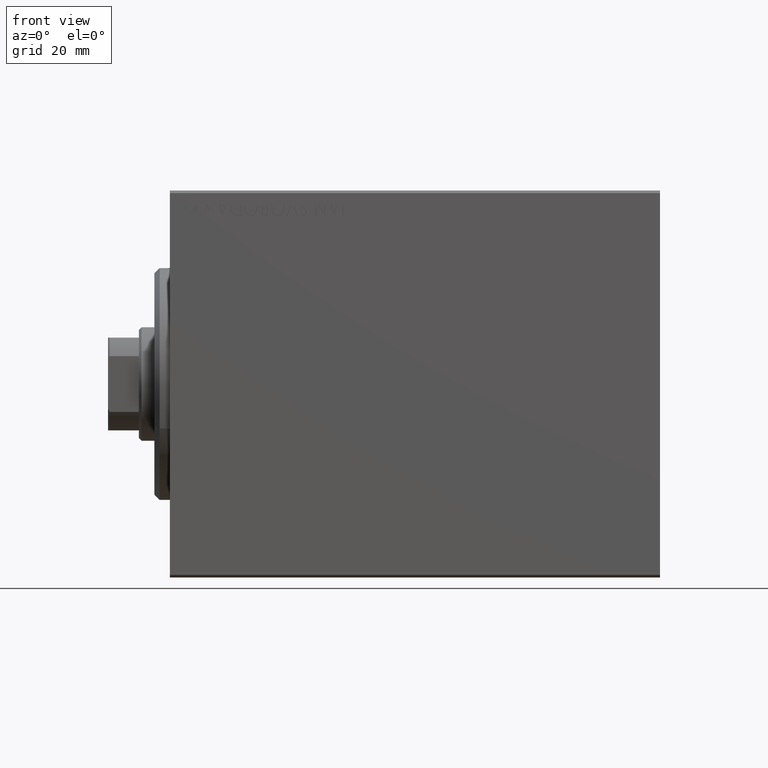
[diagram: clean part render]
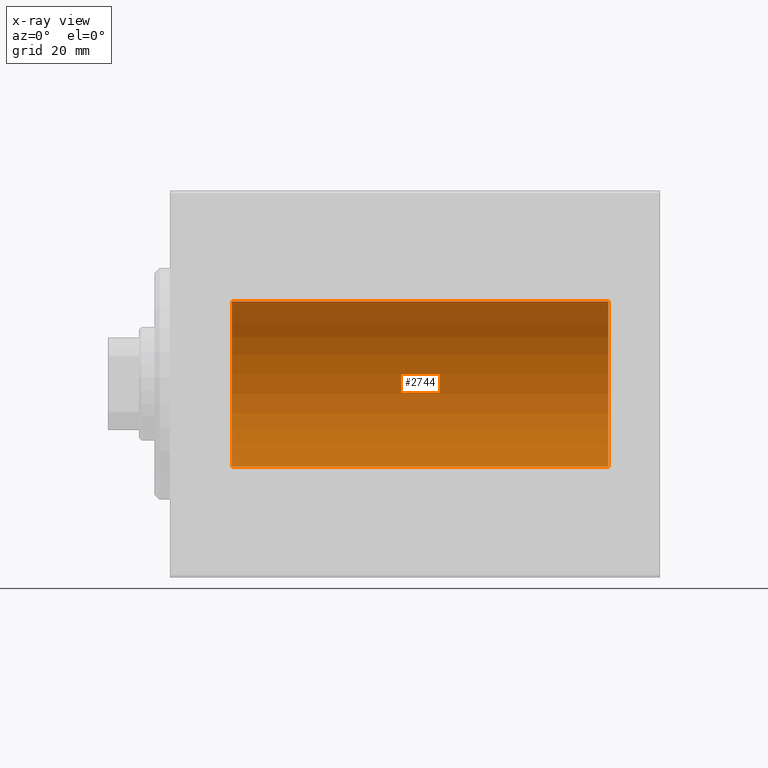
[diagram: x-ray — body ghosted, one internal face saturated and labeled with its STEP entity id]
A machine part, front view, then the same camera in x-ray: the body is ghosted and one INTERNAL B-rep face — a face not visible from any outside direction — is saturated and labeled: STEP entity #2744.
In plain terms, the highlighted cylindrical surface (partial cylindrical patch) has radius 16 mm, axis along (-1, -0, -0).
Its self-contained STEP definition (entity closure, byte-faithful):
#985 = CIRCLE ( 'NONE', #28410, 16.00000000000000000 ) ;
#2744 = ADVANCED_FACE ( 'NONE', ( #20465 ), #23969, .F. ) ;
#3321 = CARTESIAN_POINT ( 'NONE',  ( 11.99999999999999645, 0.000000000000000000, 16.00000000000000000 ) ) ;
#4527 = CARTESIAN_POINT ( 'NONE',  ( 85.00000000000000000, 1.959434878635765131E-15, -16.00000000000000000 ) ) ;
#5422 = CARTESIAN_POINT ( 'NONE',  ( 85.00000000000000000, 1.959434878635765131E-15, -16.00000000000000000 ) ) ;
#6401 = ORIENTED_EDGE ( 'NONE', *, *, #33123, .T. ) ;
#6635 = LINE ( 'NONE', #20266, #21334 ) ;
#8750 = AXIS2_PLACEMENT_3D ( 'NONE', #9308, #22712, #36177 ) ;
#9266 = EDGE_CURVE ( 'NONE', #32336, #30458, #985, .T. ) ;
#9308 = CARTESIAN_POINT ( 'NONE',  ( 85.00000000000000000, 0.000000000000000000, 0.000000000000000000 ) ) ;
#10033 = EDGE_LOOP ( 'NONE', ( #38786, #18962, #6401, #39457 ) ) ;
#11600 = LINE ( 'NONE', #5422, #26466 ) ;
#14304 = DIRECTION ( 'NONE',  ( -1.000000000000000000, -0.000000000000000000, -0.000000000000000000 ) ) ;
#15759 = CIRCLE ( 'NONE', #8750, 16.00000000000000000 ) ;
#18962 = ORIENTED_EDGE ( 'NONE', *, *, #35311, .F. ) ;
#20266 = CARTESIAN_POINT ( 'NONE',  ( 85.00000000000000000, 0.000000000000000000, 16.00000000000000000 ) ) ;
#20465 = FACE_OUTER_BOUND ( 'NONE', #10033, .T. ) ;
#21334 = VECTOR ( 'NONE', #36600, 1000.000000000000000 ) ;
#21359 = CARTESIAN_POINT ( 'NONE',  ( 11.99999999999999645, 1.959434878635765131E-15, -16.00000000000000000 ) ) ;
#22499 = CARTESIAN_POINT ( 'NONE',  ( 11.99999999999999645, 0.000000000000000000, 0.000000000000000000 ) ) ;
#22712 = DIRECTION ( 'NONE',  ( -1.000000000000000000, 0.000000000000000000, 0.000000000000000000 ) ) ;
#23364 = DIRECTION ( 'NONE',  ( -1.000000000000000000, 0.000000000000000000, 0.000000000000000000 ) ) ;
#23969 = CYLINDRICAL_SURFACE ( 'NONE', #36024, 16.00000000000000000 ) ;
#26466 = VECTOR ( 'NONE', #38698, 1000.000000000000000 ) ;
#27492 = CARTESIAN_POINT ( 'NONE',  ( 85.00000000000000000, 0.000000000000000000, 0.000000000000000000 ) ) ;
#28157 = DIRECTION ( 'NONE',  ( 0.000000000000000000, 0.000000000000000000, 1.000000000000000000 ) ) ;
#28410 = AXIS2_PLACEMENT_3D ( 'NONE', #22499, #23364, #29773 ) ;
#29773 = DIRECTION ( 'NONE',  ( 0.000000000000000000, 0.000000000000000000, 1.000000000000000000 ) ) ;
#30458 = VERTEX_POINT ( 'NONE', #21359 ) ;
#32336 = VERTEX_POINT ( 'NONE', #3321 ) ;
#32716 = VERTEX_POINT ( 'NONE', #39971 ) ;
#33123 = EDGE_CURVE ( 'NONE', #32716, #32336, #6635, .T. ) ;
#35311 = EDGE_CURVE ( 'NONE', #32716, #39847, #15759, .T. ) ;
#36024 = AXIS2_PLACEMENT_3D ( 'NONE', #27492, #14304, #28157 ) ;
#36177 = DIRECTION ( 'NONE',  ( 0.000000000000000000, 0.000000000000000000, 1.000000000000000000 ) ) ;
#36600 = DIRECTION ( 'NONE',  ( -1.000000000000000000, -0.000000000000000000, -0.000000000000000000 ) ) ;
#38698 = DIRECTION ( 'NONE',  ( -1.000000000000000000, -0.000000000000000000, -0.000000000000000000 ) ) ;
#38786 = ORIENTED_EDGE ( 'NONE', *, *, #42038, .F. ) ;
#39457 = ORIENTED_EDGE ( 'NONE', *, *, #9266, .T. ) ;
#39847 = VERTEX_POINT ( 'NONE', #4527 ) ;
#39971 = CARTESIAN_POINT ( 'NONE',  ( 85.00000000000000000, 0.000000000000000000, 16.00000000000000000 ) ) ;
#42038 = EDGE_CURVE ( 'NONE', #39847, #30458, #11600, .T. ) ;